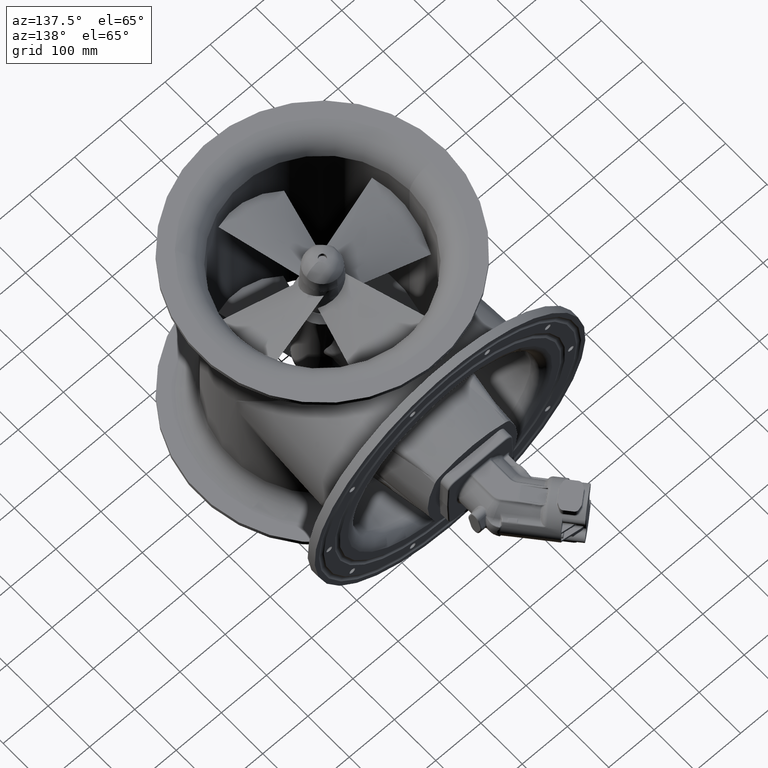
[diagram: clean part render]
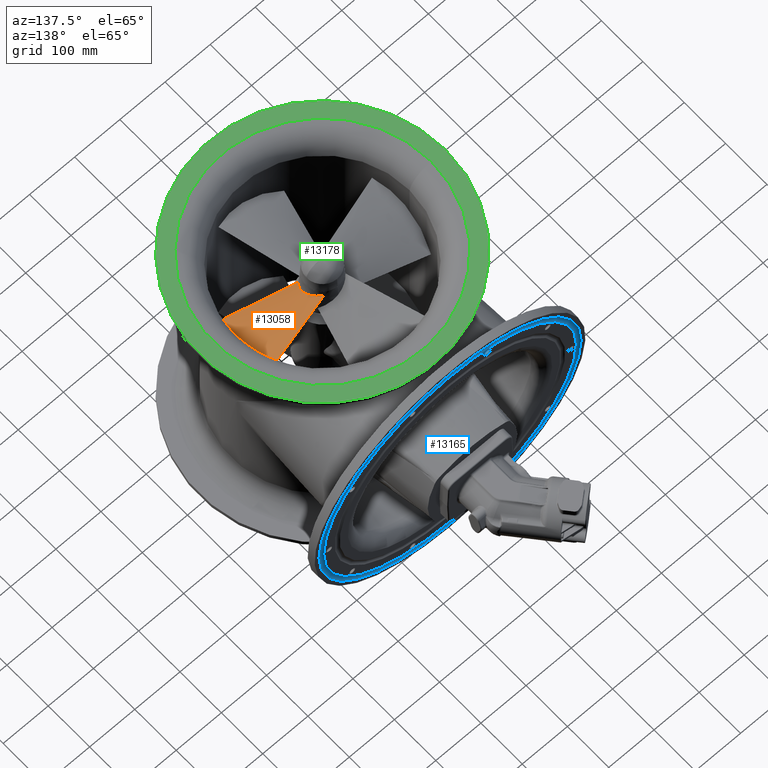
[diagram: same view with three faces highlighted in distinct colors, each labeled with its STEP entity id]
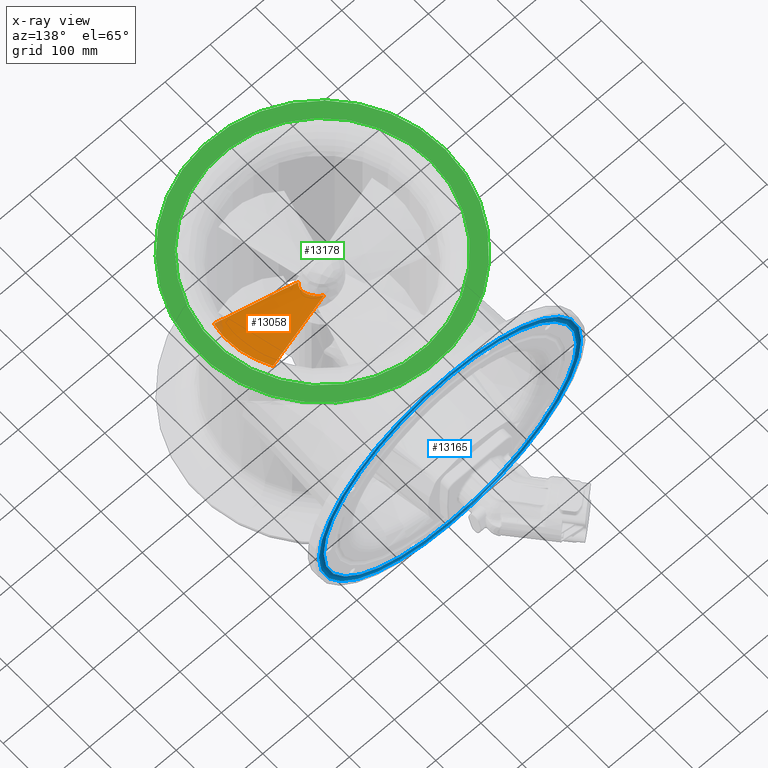
[diagram: x-ray of the same camera — body ghosted, the three highlighted faces saturated]
A machine part, auxiliary view with three faces highlighted in distinct colors.
The next image is the same camera in x-ray (body ghosted, the three faces saturated) — at least one of them is partly hidden behind the body in this view.
Their STEP definitions:

[orange] entity #13058 — the highlighted face is a freeform B-spline surface patch.
#76=B_SPLINE_SURFACE_WITH_KNOTS('',3,3,((#51642,#51643,#51644,#51645),(#51646,
#51647,#51648,#51649),(#51650,#51651,#51652,#51653),(#51654,#51655,#51656,
#51657),(#51658,#51659,#51660,#51661)),.UNSPECIFIED.,.F.,.F.,.F.,(4,1,4),
(4,4),(0.,0.571428571428571,1.),(0.21885541195284,0.944592000267785),
 .UNSPECIFIED.);
#1517=B_SPLINE_CURVE_WITH_KNOTS('',3,(#51462,#51463,#51464,#51465,#51466,
#51467,#51468,#51469),.UNSPECIFIED.,.F.,.F.,(4,2,2,4),(-16.3029228168201,
-10.6747339701528,-6.94793082397461,0.),.UNSPECIFIED.);
#1523=B_SPLINE_CURVE_WITH_KNOTS('',3,(#51537,#51538,#51539,#51540),
 .UNSPECIFIED.,.F.,.F.,(4,4),(0.220585843450593,0.81592196059834),
 .UNSPECIFIED.);
#1525=B_SPLINE_CURVE_WITH_KNOTS('',3,(#51554,#51555,#51556,#51557),
 .UNSPECIFIED.,.F.,.F.,(4,4),(0.21885541195284,0.823709025792353),
 .UNSPECIFIED.);
#1532=B_SPLINE_CURVE_WITH_KNOTS('',3,(#51662,#51663,#51664,#51665,#51666,
#51667,#51668,#51669,#51670,#51671,#51672,#51673),.UNSPECIFIED.,.F.,.F.,
(4,2,2,2,2,4),(0.,2.7708361220963,5.2210690774772,7.26873717908074,8.29048922928575,
9.32154425047041),.UNSPECIFIED.);
#2354=FACE_OUTER_BOUND('',#3204,.T.);
#3204=EDGE_LOOP('',(#10979,#10980,#10981,#10982));
#5732=VERTEX_POINT('',#51460);
#5733=VERTEX_POINT('',#51461);
#5738=VERTEX_POINT('',#51536);
#5739=VERTEX_POINT('',#51541);
#7516=EDGE_CURVE('',#5732,#5733,#1517,.T.);
#7522=EDGE_CURVE('',#5738,#5732,#1523,.T.);
#7524=EDGE_CURVE('',#5739,#5733,#1525,.T.);
#7531=EDGE_CURVE('',#5738,#5739,#1532,.T.);
#10979=ORIENTED_EDGE('',*,*,#7516,.T.);
#10980=ORIENTED_EDGE('',*,*,#7524,.F.);
#10981=ORIENTED_EDGE('',*,*,#7531,.F.);
#10982=ORIENTED_EDGE('',*,*,#7522,.T.);
#13058=ADVANCED_FACE('',(#2354),#76,.T.);
#51460=CARTESIAN_POINT('',(176.857609825641,-170.67208619065,130.649670727562));
#51461=CARTESIAN_POINT('',(178.169781228323,-26.4754209663913,196.9704455366));
#51462=CARTESIAN_POINT('Ctrl Pts',(176.857609825641,-170.67208619065,130.649670727562));
#51463=CARTESIAN_POINT('Ctrl Pts',(182.95343862546,-156.362012540171,141.187276629846));
#51464=CARTESIAN_POINT('Ctrl Pts',(187.509669892815,-140.700198707715,150.648323275793));
#51465=CARTESIAN_POINT('Ctrl Pts',(191.526151682485,-113.177749273441,164.898470834941));
#51466=CARTESIAN_POINT('Ctrl Pts',(192.183026427365,-101.882092795246,170.147891784469));
#51467=CARTESIAN_POINT('Ctrl Pts',(191.032616766409,-69.0334409678505,183.965292933079));
#51468=CARTESIAN_POINT('Ctrl Pts',(186.601724924129,-47.3134013934346,191.397670957651));
#51469=CARTESIAN_POINT('Ctrl Pts',(178.169781228323,-26.4754209663913,196.9704455366));
#51536=CARTESIAN_POINT('',(27.6491293800324,-129.185798205072,141.165641027835));
#51537=CARTESIAN_POINT('Ctrl Pts',(27.6491293800324,-129.185798205072,141.165641027835));
#51538=CARTESIAN_POINT('Ctrl Pts',(66.5376841190432,-139.986384025596,138.427901759534));
#51539=CARTESIAN_POINT('Ctrl Pts',(142.860103615593,-161.236867133214,133.041315972349));
#51540=CARTESIAN_POINT('Ctrl Pts',(176.857609825641,-170.67208619065,130.649670727562));
#51541=CARTESIAN_POINT('',(27.3109743126287,-67.7052887694353,185.768587494679));
#51554=CARTESIAN_POINT('Ctrl Pts',(27.3109743126287,-67.7052887694353,185.768587494679));
#51555=CARTESIAN_POINT('Ctrl Pts',(66.5994535414642,-56.9798064031219,188.682623781977));
#51556=CARTESIAN_POINT('Ctrl Pts',(144.767559547664,-35.585707091722,194.495246431312));
#51557=CARTESIAN_POINT('Ctrl Pts',(178.169781228323,-26.4754209663914,196.9704455366));
#51642=CARTESIAN_POINT('Ctrl Pts',(27.3109743126287,-67.7052887694353,185.768587494679));
#51643=CARTESIAN_POINT('Ctrl Pts',(74.4514496660307,-54.8362659142197,189.265008289696));
#51644=CARTESIAN_POINT('Ctrl Pts',(177.565051419104,-26.6081489967979,196.934384286976));
#51645=CARTESIAN_POINT('Ctrl Pts',(192.164752192881,-22.6683543225626,198.004798115755));
#51646=CARTESIAN_POINT('Ctrl Pts',(27.3109743126287,-81.3998930859109,180.431725914801));
#51647=CARTESIAN_POINT('Ctrl Pts',(74.4514496660307,-73.4442571849071,183.132008646417));
#51648=CARTESIAN_POINT('Ctrl Pts',(177.565051419104,-55.9959440377477,189.057562798757));
#51649=CARTESIAN_POINT('Ctrl Pts',(192.164752192881,-53.5603611418616,189.884242465476));
#51650=CARTESIAN_POINT('Ctrl Pts',(27.3109743126287,-103.925790671525,167.567110457424));
#51651=CARTESIAN_POINT('Ctrl Pts',(74.4514496660306,-104.596247271461,168.419504721821));
#51652=CARTESIAN_POINT('Ctrl Pts',(177.565051419104,-106.06574409303,170.288215915332));
#51653=CARTESIAN_POINT('Ctrl Pts',(192.164752192881,-106.271001428529,170.549172665584));
#51654=CARTESIAN_POINT('Ctrl Pts',(27.3109743126287,-122.216293170895,149.610086057513));
#51655=CARTESIAN_POINT('Ctrl Pts',(74.4514496660307,-131.577732220839,147.680420691022));
#51656=CARTESIAN_POINT('Ctrl Pts',(177.565051419104,-152.112510427974,143.447502050758));
#51657=CARTESIAN_POINT('Ctrl Pts',(192.164752192881,-154.978473767001,142.85674349671));
#51658=CARTESIAN_POINT('Ctrl Pts',(27.3109743126287,-129.091883165499,141.189446670973));
#51659=CARTESIAN_POINT('Ctrl Pts',(74.4514496660307,-142.183910159782,137.870871456673));
#51660=CARTESIAN_POINT('Ctrl Pts',(177.565051419104,-170.901185188234,130.591598569955));
#51661=CARTESIAN_POINT('Ctrl Pts',(192.164752192881,-174.909251597574,129.575631382513));
#51662=CARTESIAN_POINT('Ctrl Pts',(27.6491293800324,-129.185798205072,141.165641027835));
#51663=CARTESIAN_POINT('Ctrl Pts',(32.7174440569943,-124.992947494038,147.649321265374));
#51664=CARTESIAN_POINT('Ctrl Pts',(36.8494056713841,-119.512457938211,153.432004765235));
#51665=CARTESIAN_POINT('Ctrl Pts',(41.6850794924317,-107.490045884559,163.57640749976));
#51666=CARTESIAN_POINT('Ctrl Pts',(42.6264135681338,-101.414638499943,167.783372959377));
#51667=CARTESIAN_POINT('Ctrl Pts',(41.775437733209,-90.3356703205741,174.595853825637));
#51668=CARTESIAN_POINT('Ctrl Pts',(40.4019483519453,-85.2422245007303,177.388665819661));
#51669=CARTESIAN_POINT('Ctrl Pts',(36.6810744474123,-78.0575610067971,181.020053348494));
#51670=CARTESIAN_POINT('Ctrl Pts',(35.1769424357877,-75.7637156444136,182.125394252898));
#51671=CARTESIAN_POINT('Ctrl Pts',(31.6240776737572,-71.4587884100641,184.124658071006));
#51672=CARTESIAN_POINT('Ctrl Pts',(29.5854235725789,-69.4688004795181,185.008062327915));
#51673=CARTESIAN_POINT('Ctrl Pts',(27.3109743126287,-67.7052887694353,185.768587494679));

[blue] entity #13165 — the highlighted toroidal blend (fillet) surface has major radius 285 mm and minor (blend) radius 8 mm.
#197=TOROIDAL_SURFACE('',#14294,285.,8.);
#844=FACE_BOUND('',#3364,.T.);
#2461=FACE_OUTER_BOUND('',#3363,.T.);
#3363=EDGE_LOOP('',(#11407));
#3364=EDGE_LOOP('',(#11408));
#4787=CIRCLE('',#14295,290.291502622129);
#4788=CIRCLE('',#14296,279.708497377871);
#5899=VERTEX_POINT('',#56372);
#5900=VERTEX_POINT('',#56374);
#7750=EDGE_CURVE('',#5899,#5899,#4787,.T.);
#7751=EDGE_CURVE('',#5900,#5900,#4788,.T.);
#11407=ORIENTED_EDGE('',*,*,#7750,.F.);
#11408=ORIENTED_EDGE('',*,*,#7751,.F.);
#13165=ADVANCED_FACE('',(#2461,#844),#197,.F.);
#14294=AXIS2_PLACEMENT_3D('',#56371,#16887,#16888);
#14295=AXIS2_PLACEMENT_3D('',#56373,#16889,#16890);
#14296=AXIS2_PLACEMENT_3D('',#56375,#16891,#16892);
#16887=DIRECTION('center_axis',(4.17516537684347E-17,-1.,-2.4995738599939E-16));
#16888=DIRECTION('ref_axis',(3.12226543444071E-16,-2.91007263792532E-16,
1.));
#16889=DIRECTION('center_axis',(4.17516537684347E-17,-1.,-2.4995738599939E-16));
#16890=DIRECTION('ref_axis',(3.12250225675821E-16,-2.4995738599939E-16,
1.));
#16891=DIRECTION('center_axis',(-4.17516537684347E-17,1.,2.4995738599939E-16));
#16892=DIRECTION('ref_axis',(3.12250225675821E-16,-2.4995738599939E-16,
1.));
#56371=CARTESIAN_POINT('Origin',(3.89657678097514,217.406140227486,-0.0114437796169011));
#56372=CARTESIAN_POINT('',(3.89657678097509,211.406140227486,-290.302946401746));
#56373=CARTESIAN_POINT('Origin',(3.89657678097514,211.406140227486,-0.0114437796169026));
#56374=CARTESIAN_POINT('',(3.89657678097502,211.406140227486,-279.719941157488));
#56375=CARTESIAN_POINT('Origin',(3.89657678097514,211.406140227486,-0.0114437796169026));

[green] entity #13178 — the highlighted planar face has unit normal (0, -0, 1).
#880=FACE_BOUND('',#3413,.T.);
#2474=FACE_OUTER_BOUND('',#3412,.T.);
#3412=EDGE_LOOP('',(#11456));
#3413=EDGE_LOOP('',(#11457));
#4799=CIRCLE('',#14319,272.5);
#4800=CIRCLE('',#14321,241.1);
#5911=VERTEX_POINT('',#56408);
#5912=VERTEX_POINT('',#56411);
#7762=EDGE_CURVE('',#5911,#5911,#4799,.T.);
#7763=EDGE_CURVE('',#5912,#5912,#4800,.T.);
#11456=ORIENTED_EDGE('',*,*,#7762,.F.);
#11457=ORIENTED_EDGE('',*,*,#7763,.T.);
#11588=PLANE('',#14320);
#13178=ADVANCED_FACE('',(#2474,#880),#11588,.T.);
#14319=AXIS2_PLACEMENT_3D('',#56409,#16937,#16938);
#14320=AXIS2_PLACEMENT_3D('',#56410,#16939,#16940);
#14321=AXIS2_PLACEMENT_3D('',#56412,#16941,#16942);
#16937=DIRECTION('center_axis',(-3.12250225675821E-16,2.4995738599939E-16,
-1.));
#16938=DIRECTION('ref_axis',(-1.,-4.17516537684347E-17,3.12250225675821E-16));
#16939=DIRECTION('center_axis',(3.12250225675821E-16,-2.4995738599939E-16,
1.));
#16940=DIRECTION('ref_axis',(0.,1.,0.));
#16941=DIRECTION('center_axis',(-3.12250225675821E-16,2.4995738599939E-16,
-1.));
#16942=DIRECTION('ref_axis',(-1.,-4.17516537684347E-17,3.12250225675821E-16));
#56408=CARTESIAN_POINT('',(-268.603423219025,-96.993859772514,274.988556220383));
#56409=CARTESIAN_POINT('Origin',(3.89657678097524,-96.993859772514,274.988556220383));
#56410=CARTESIAN_POINT('Origin',(-268.603423219025,-96.993859772514,274.988556220383));
#56411=CARTESIAN_POINT('',(-237.203423219025,-96.993859772514,274.988556220383));
#56412=CARTESIAN_POINT('Origin',(3.89657678097524,-96.993859772514,274.988556220383));